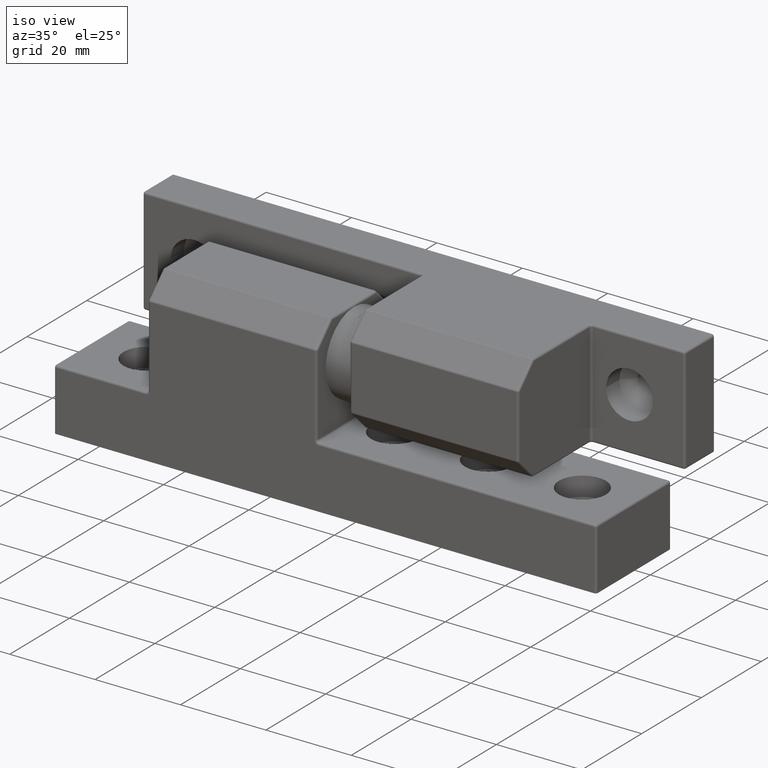
[diagram: clean part render]
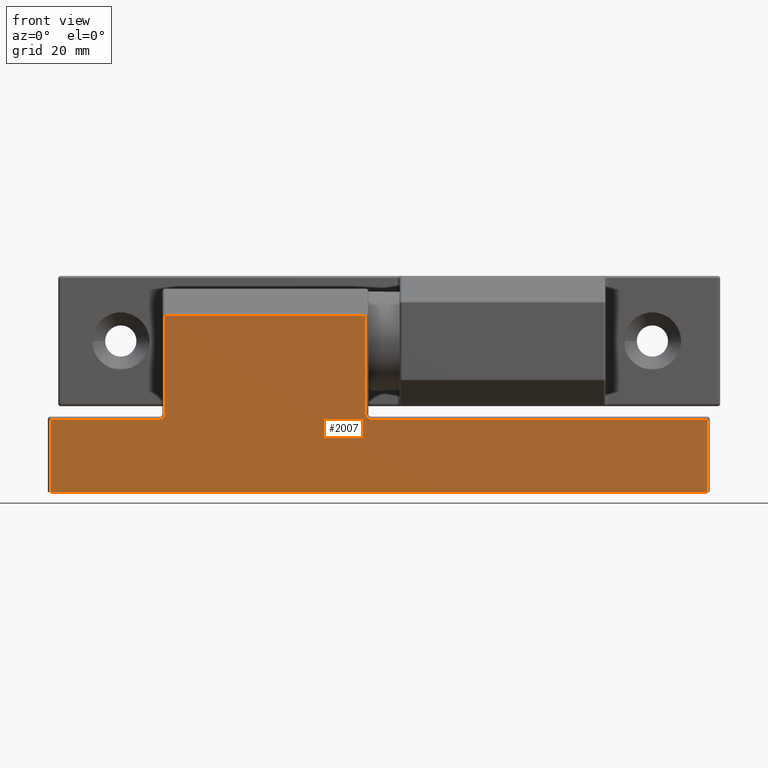
[diagram: tour spotlight — one face highlighted and labeled with its STEP entity id]
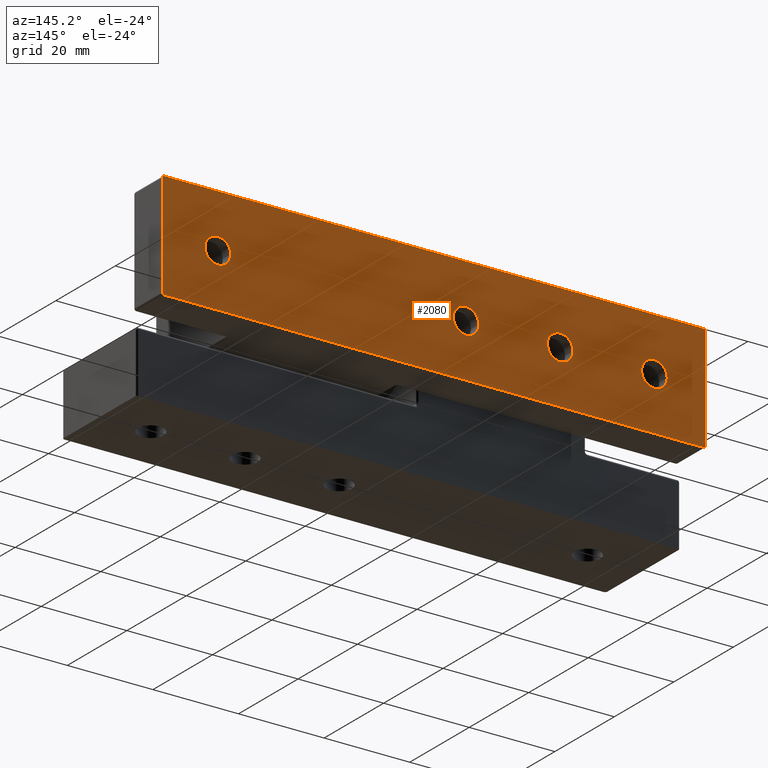
[diagram: tour spotlight — one face highlighted and labeled with its STEP entity id]
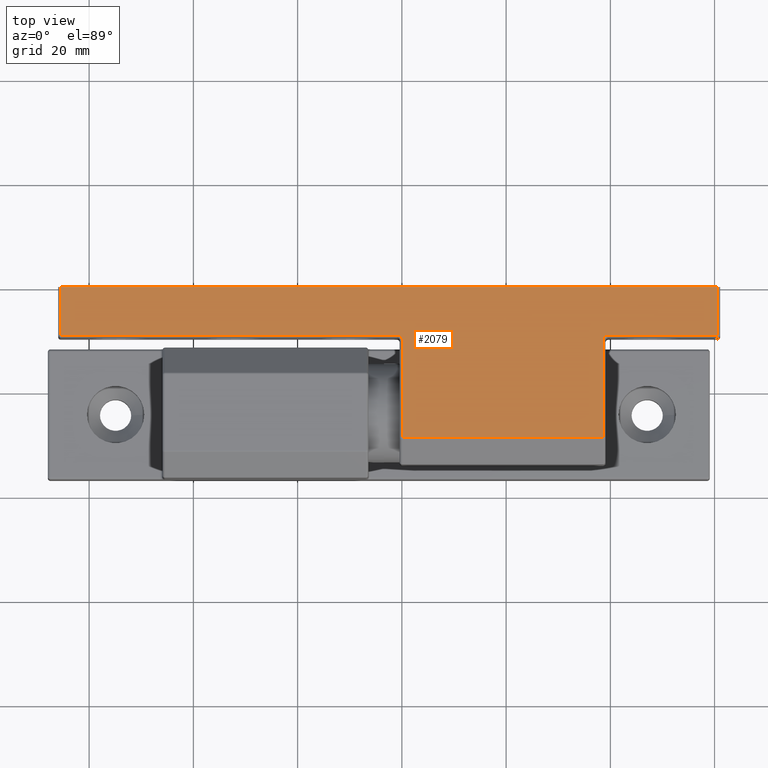
[diagram: tour spotlight — one face highlighted and labeled with its STEP entity id]
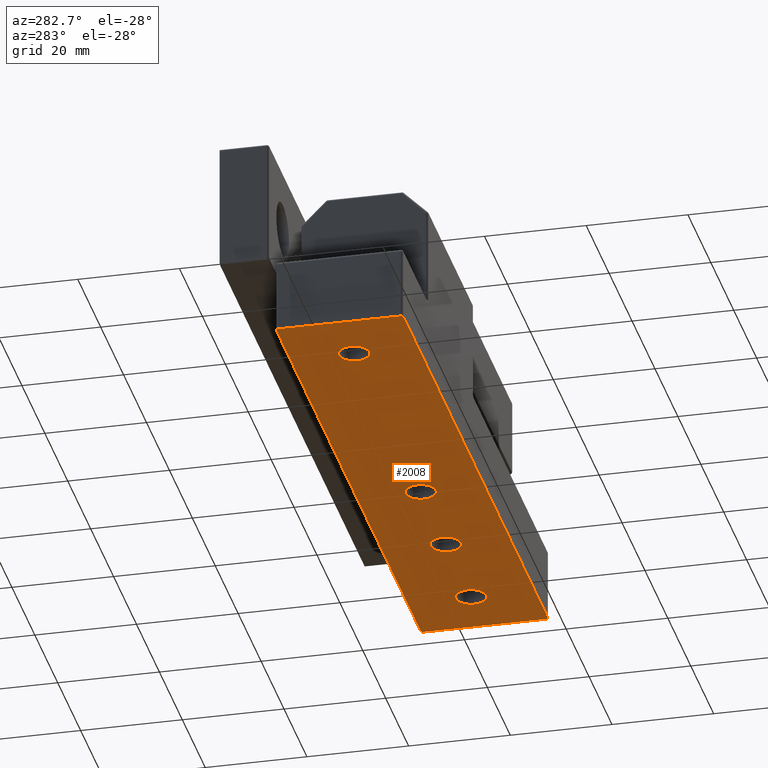
[diagram: tour spotlight — one face highlighted and labeled with its STEP entity id]
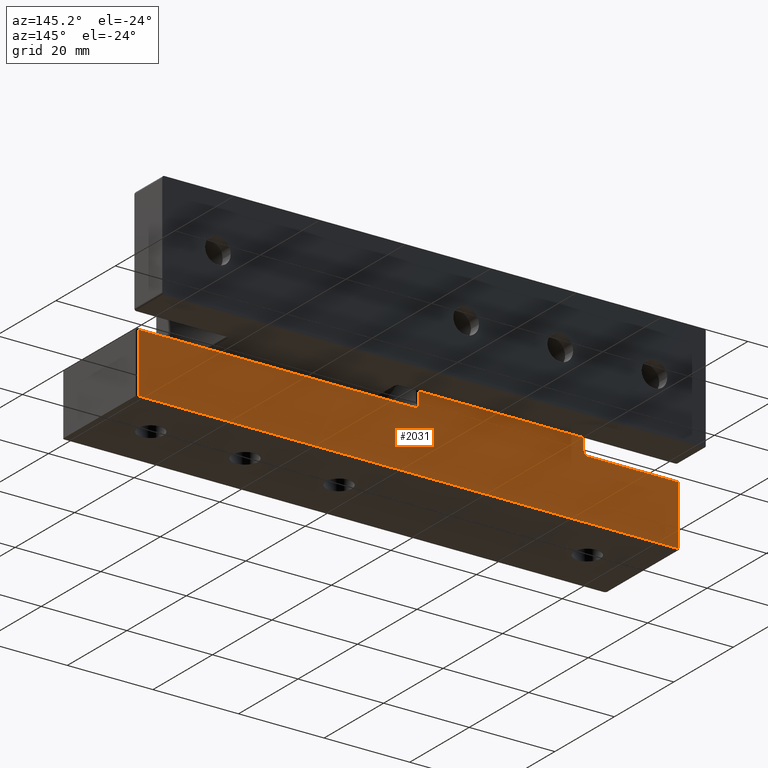
[diagram: tour spotlight — one face highlighted and labeled with its STEP entity id]
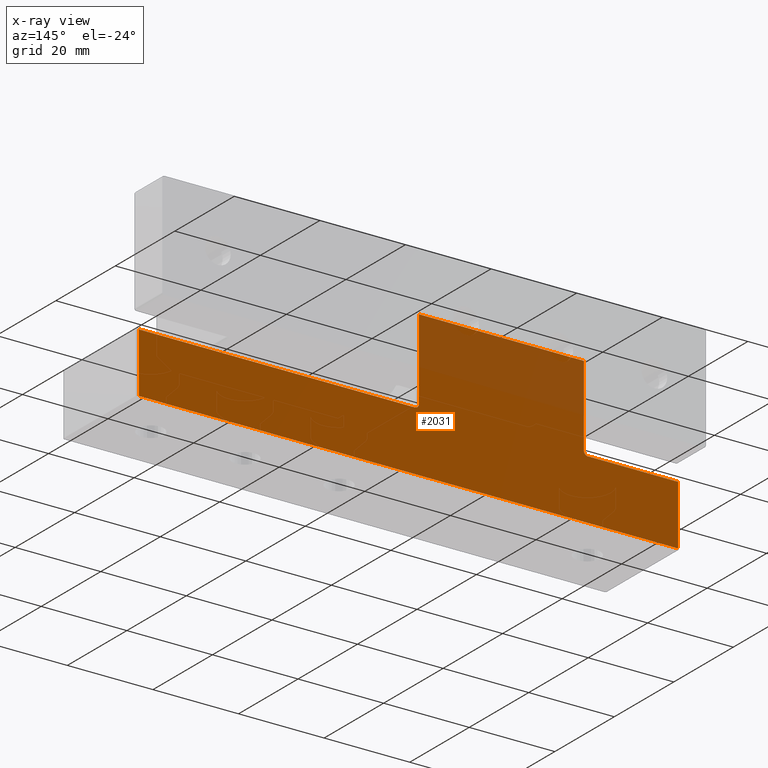
[diagram: x-ray of the same camera — body ghosted, this tour face saturated]
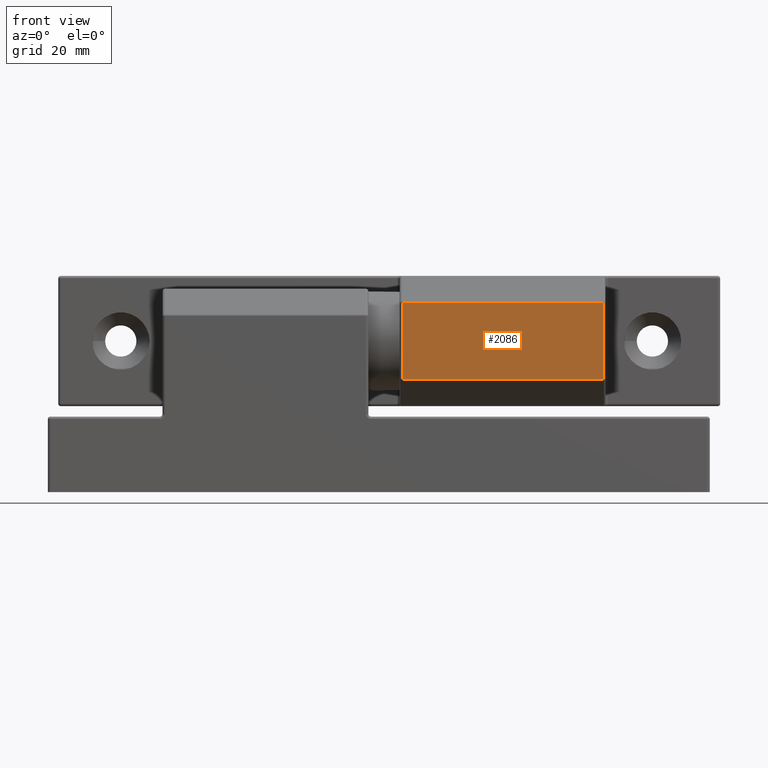
[diagram: tour spotlight — one face highlighted and labeled with its STEP entity id]
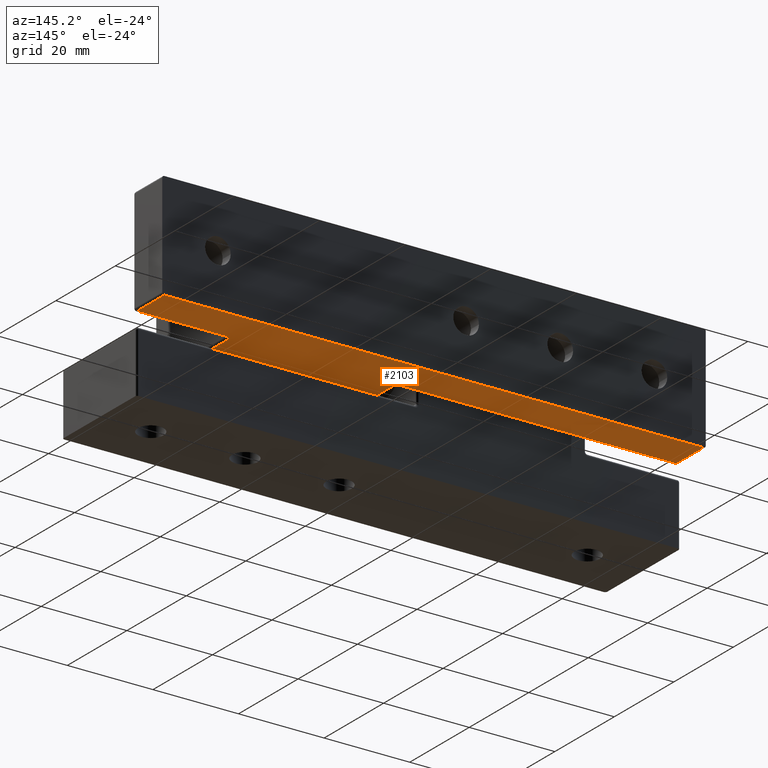
[diagram: tour spotlight — one face highlighted and labeled with its STEP entity id]
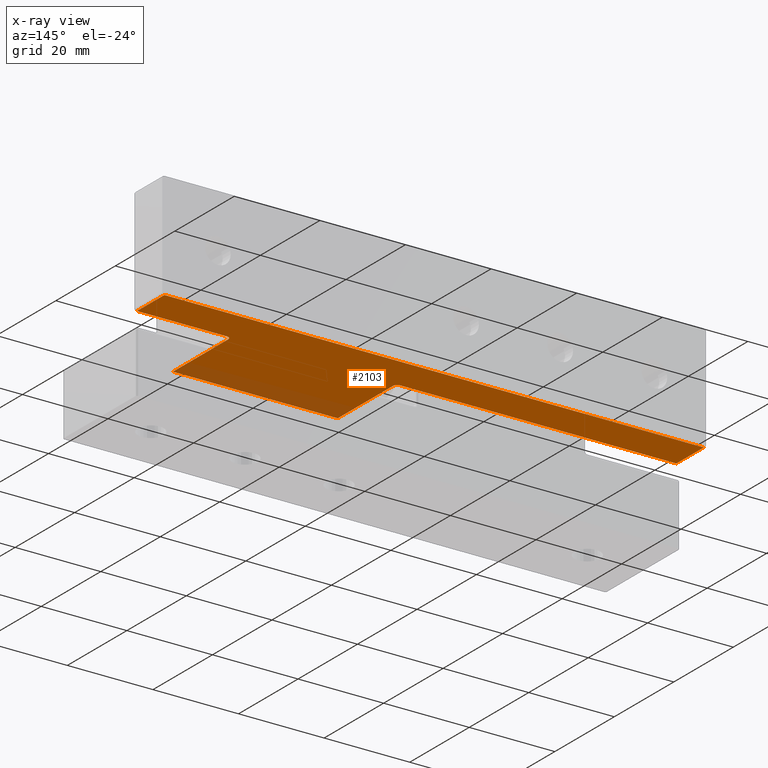
[diagram: x-ray of the same camera — body ghosted, this tour face saturated]
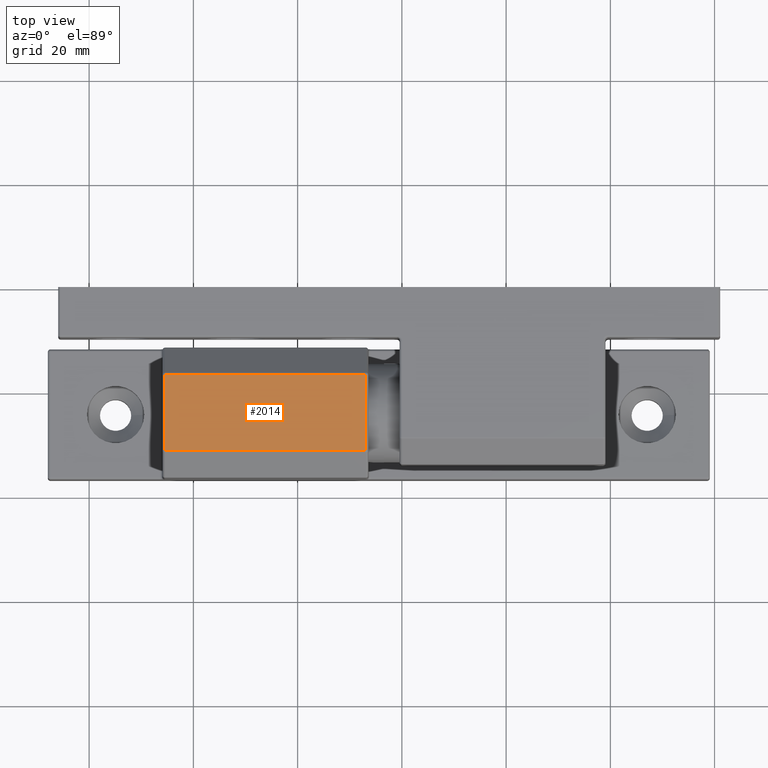
[diagram: tour spotlight — one face highlighted and labeled with its STEP entity id]
A machine part: a face-by-face anatomy tour. The part has 149 B-rep faces; the first image is the clean iso view, then the 8 largest visible faces are spotlighted one at a time (largest first), each with its STEP entity span.

Face 1 — front view, entity #2007. In plain terms, the highlighted planar face has unit normal (-0, -1, 0).
Definition (entity closure, byte-faithful):
#105=PLANE('',#2218);
#149=LINE('',#3238,#261);
#156=LINE('',#3268,#268);
#161=LINE('',#3307,#273);
#165=LINE('',#3322,#277);
#167=LINE('',#3346,#279);
#169=LINE('',#3349,#281);
#173=LINE('',#3355,#285);
#197=LINE('',#3392,#309);
#261=VECTOR('',#2501,14.);
#268=VECTOR('',#2536,14.);
#273=VECTOR('',#2581,64.5);
#277=VECTOR('',#2599,21.);
#279=VECTOR('',#2627,18.7928932188135);
#281=VECTOR('',#2631,38.5);
#285=VECTOR('',#2639,18.7928932188134);
#309=VECTOR('',#2689,126.);
#486=FACE_OUTER_BOUND('',#635,.T.);
#635=EDGE_LOOP('',(#1556,#1557,#1558,#1559,#1560,#1561,#1562,#1563,#1564,
#1565));
#835=CIRCLE('',#2178,0.999999999999999);
#841=CIRCLE('',#2187,1.);
#975=VERTEX_POINT('',#3227);
#978=VERTEX_POINT('',#3234);
#986=VERTEX_POINT('',#3261);
#988=VERTEX_POINT('',#3266);
#999=VERTEX_POINT('',#3297);
#1000=VERTEX_POINT('',#3298);
#1005=VERTEX_POINT('',#3315);
#1006=VERTEX_POINT('',#3317);
#1012=VERTEX_POINT('',#3334);
#1015=VERTEX_POINT('',#3341);
#1150=EDGE_CURVE('',#975,#978,#149,.T.);
#1165=EDGE_CURVE('',#988,#986,#156,.T.);
#1179=EDGE_CURVE('',#999,#1000,#835,.T.);
#1184=EDGE_CURVE('',#1000,#975,#161,.T.);
#1189=EDGE_CURVE('',#1005,#1006,#841,.T.);
#1192=EDGE_CURVE('',#986,#1005,#165,.T.);
#1203=EDGE_CURVE('',#1006,#1015,#167,.T.);
#1205=EDGE_CURVE('',#1015,#1012,#169,.T.);
#1209=EDGE_CURVE('',#1012,#999,#173,.T.);
#1233=EDGE_CURVE('',#988,#978,#197,.T.);
#1556=ORIENTED_EDGE('',*,*,#1150,.F.);
#1557=ORIENTED_EDGE('',*,*,#1184,.F.);
#1558=ORIENTED_EDGE('',*,*,#1179,.F.);
#1559=ORIENTED_EDGE('',*,*,#1209,.F.);
#1560=ORIENTED_EDGE('',*,*,#1205,.F.);
#1561=ORIENTED_EDGE('',*,*,#1203,.F.);
#1562=ORIENTED_EDGE('',*,*,#1189,.F.);
#1563=ORIENTED_EDGE('',*,*,#1192,.F.);
#1564=ORIENTED_EDGE('',*,*,#1165,.F.);
#1565=ORIENTED_EDGE('',*,*,#1233,.T.);
#2007=ADVANCED_FACE('',(#486),#105,.T.);
#2178=AXIS2_PLACEMENT_3D('',#3299,#2570,#2571);
#2187=AXIS2_PLACEMENT_3D('',#3318,#2592,#2593);
#2218=AXIS2_PLACEMENT_3D('',#3391,#2687,#2688);
#2501=DIRECTION('',(0.,0.,-1.));
#2536=DIRECTION('',(0.,0.,1.));
#2570=DIRECTION('center_axis',(0.,-1.,0.));
#2571=DIRECTION('ref_axis',(-0.707106781186545,0.,-0.70710678118655));
#2581=DIRECTION('',(1.,0.,0.));
#2592=DIRECTION('center_axis',(0.,-1.,0.));
#2593=DIRECTION('ref_axis',(0.707106781186544,0.,-0.707106781186551));
#2599=DIRECTION('',(1.,0.,0.));
#2627=DIRECTION('',(0.,0.,1.));
#2631=DIRECTION('',(1.,0.,-3.55271367880049E-16));
#2639=DIRECTION('',(0.,0.,-1.));
#2687=DIRECTION('center_axis',(0.,-1.,0.));
#2688=DIRECTION('ref_axis',(1.,0.,0.));
#2689=DIRECTION('',(1.,0.,0.));
#3227=CARTESIAN_POINT('',(63.,-12.5,14.));
#3234=CARTESIAN_POINT('',(63.,-12.5,0.));
#3238=CARTESIAN_POINT('',(63.,-12.5,0.));
#3261=CARTESIAN_POINT('',(-63.,-12.5,14.));
#3266=CARTESIAN_POINT('',(-63.,-12.5,0.));
#3268=CARTESIAN_POINT('',(-63.,-12.5,0.));
#3297=CARTESIAN_POINT('',(-2.49999999999998,-12.5,15.));
#3298=CARTESIAN_POINT('',(-1.49999999999998,-12.5,14.));
#3299=CARTESIAN_POINT('Origin',(-1.49999999999998,-12.5,15.));
#3307=CARTESIAN_POINT('',(-31.75,-12.5,14.));
#3315=CARTESIAN_POINT('',(-42.,-12.5,14.));
#3317=CARTESIAN_POINT('',(-41.,-12.5,15.));
#3318=CARTESIAN_POINT('Origin',(-42.,-12.5,15.));
#3322=CARTESIAN_POINT('',(-31.75,-12.5,14.));
#3334=CARTESIAN_POINT('',(-2.49999999999998,-12.5,33.7928932188134));
#3341=CARTESIAN_POINT('',(-41.,-12.5,33.7928932188135));
#3346=CARTESIAN_POINT('',(-41.,-12.5,12.9341996193842));
#3349=CARTESIAN_POINT('',(-52.5,-12.5,33.7928932188135));
#3355=CARTESIAN_POINT('',(-2.49999999999998,-12.5,12.9341996193842));
#3391=CARTESIAN_POINT('Origin',(-63.5,-12.5,0.));
#3392=CARTESIAN_POINT('',(-63.5,-12.5,0.));

Face 2 — auxiliary view, entity #2080. In plain terms, the highlighted planar face has unit normal (-0, -1, 0).
Definition (entity closure, byte-faithful):
#75=FACE_BOUND('',#735,.T.);
#76=FACE_BOUND('',#736,.T.);
#77=FACE_BOUND('',#737,.T.);
#78=FACE_BOUND('',#738,.T.);
#121=PLANE('',#2370);
#252=LINE('',#3679,#364);
#253=LINE('',#3681,#365);
#254=LINE('',#3683,#366);
#255=LINE('',#3684,#367);
#364=VECTOR('',#3044,24.);
#365=VECTOR('',#3047,126.);
#366=VECTOR('',#3050,24.);
#367=VECTOR('',#3051,126.);
#559=FACE_OUTER_BOUND('',#734,.T.);
#734=EDGE_LOOP('',(#1834,#1835,#1836,#1837,#1838,#1839,#1840,#1841));
#735=EDGE_LOOP('',(#1842));
#736=EDGE_LOOP('',(#1843));
#737=EDGE_LOOP('',(#1844));
#738=EDGE_LOOP('',(#1845));
#877=CIRCLE('',#2275,0.5);
#884=CIRCLE('',#2285,0.5);
#894=CIRCLE('',#2299,0.5);
#902=CIRCLE('',#2313,0.5);
#930=CIRCLE('',#2371,3.);
#931=CIRCLE('',#2372,3.);
#932=CIRCLE('',#2373,3.);
#933=CIRCLE('',#2374,3.);
#1041=VERTEX_POINT('',#3476);
#1042=VERTEX_POINT('',#3477);
#1049=VERTEX_POINT('',#3496);
#1050=VERTEX_POINT('',#3497);
#1060=VERTEX_POINT('',#3523);
#1061=VERTEX_POINT('',#3524);
#1069=VERTEX_POINT('',#3554);
#1070=VERTEX_POINT('',#3555);
#1098=VERTEX_POINT('',#3685);
#1099=VERTEX_POINT('',#3687);
#1100=VERTEX_POINT('',#3689);
#1101=VERTEX_POINT('',#3691);
#1261=EDGE_CURVE('',#1041,#1042,#877,.T.);
#1270=EDGE_CURVE('',#1049,#1050,#884,.T.);
#1282=EDGE_CURVE('',#1060,#1061,#894,.T.);
#1298=EDGE_CURVE('',#1069,#1070,#902,.T.);
#1366=EDGE_CURVE('',#1061,#1041,#252,.T.);
#1367=EDGE_CURVE('',#1070,#1060,#253,.T.);
#1368=EDGE_CURVE('',#1050,#1069,#254,.T.);
#1369=EDGE_CURVE('',#1042,#1049,#255,.T.);
#1370=EDGE_CURVE('',#1098,#1098,#930,.T.);
#1371=EDGE_CURVE('',#1099,#1099,#931,.T.);
#1372=EDGE_CURVE('',#1100,#1100,#932,.T.);
#1373=EDGE_CURVE('',#1101,#1101,#933,.T.);
#1834=ORIENTED_EDGE('',*,*,#1261,.F.);
#1835=ORIENTED_EDGE('',*,*,#1366,.F.);
#1836=ORIENTED_EDGE('',*,*,#1282,.F.);
#1837=ORIENTED_EDGE('',*,*,#1367,.F.);
#1838=ORIENTED_EDGE('',*,*,#1298,.F.);
#1839=ORIENTED_EDGE('',*,*,#1368,.F.);
#1840=ORIENTED_EDGE('',*,*,#1270,.F.);
#1841=ORIENTED_EDGE('',*,*,#1369,.F.);
#1842=ORIENTED_EDGE('',*,*,#1370,.T.);
#1843=ORIENTED_EDGE('',*,*,#1371,.T.);
#1844=ORIENTED_EDGE('',*,*,#1372,.T.);
#1845=ORIENTED_EDGE('',*,*,#1373,.T.);
#2080=ADVANCED_FACE('',(#559,#75,#76,#77,#78),#121,.F.);
#2275=AXIS2_PLACEMENT_3D('',#3478,#2804,#2805);
#2285=AXIS2_PLACEMENT_3D('',#3498,#2826,#2827);
#2299=AXIS2_PLACEMENT_3D('',#3525,#2856,#2857);
#2313=AXIS2_PLACEMENT_3D('',#3556,#2892,#2893);
#2370=AXIS2_PLACEMENT_3D('',#3682,#3048,#3049);
#2371=AXIS2_PLACEMENT_3D('',#3686,#3052,#3053);
#2372=AXIS2_PLACEMENT_3D('',#3688,#3054,#3055);
#2373=AXIS2_PLACEMENT_3D('',#3690,#3056,#3057);
#2374=AXIS2_PLACEMENT_3D('',#3692,#3058,#3059);
#2804=DIRECTION('center_axis',(0.,0.,1.));
#2805=DIRECTION('ref_axis',(0.707106781186551,0.707106781186544,0.));
#2826=DIRECTION('center_axis',(0.,0.,1.));
#2827=DIRECTION('ref_axis',(-0.707106781186554,0.707106781186541,0.));
#2856=DIRECTION('center_axis',(0.,0.,1.));
#2857=DIRECTION('ref_axis',(0.707106781186554,-0.707106781186541,0.));
#2892=DIRECTION('center_axis',(0.,0.,1.));
#2893=DIRECTION('ref_axis',(-0.707106781186538,-0.707106781186557,0.));
#3044=DIRECTION('',(-7.105427357601E-16,1.,0.));
#3047=DIRECTION('',(1.,0.,0.));
#3048=DIRECTION('center_axis',(0.,0.,1.));
#3049=DIRECTION('ref_axis',(1.,0.,0.));
#3050=DIRECTION('',(3.5527136788005E-16,-1.,0.));
#3051=DIRECTION('',(-1.,-1.3987061727561E-16,0.));
#3052=DIRECTION('center_axis',(0.,0.,1.));
#3053=DIRECTION('ref_axis',(1.,0.,0.));
#3054=DIRECTION('center_axis',(0.,0.,1.));
#3055=DIRECTION('ref_axis',(1.,0.,0.));
#3056=DIRECTION('center_axis',(0.,0.,1.));
#3057=DIRECTION('ref_axis',(1.,0.,0.));
#3058=DIRECTION('center_axis',(0.,0.,1.));
#3059=DIRECTION('ref_axis',(1.,0.,0.));
#3476=CARTESIAN_POINT('',(63.5,12.,0.));
#3477=CARTESIAN_POINT('',(63.,12.5,0.));
#3478=CARTESIAN_POINT('Origin',(63.,12.,0.));
#3496=CARTESIAN_POINT('',(-63.,12.5,0.));
#3497=CARTESIAN_POINT('',(-63.5,12.,0.));
#3498=CARTESIAN_POINT('Origin',(-63.,12.,0.));
#3523=CARTESIAN_POINT('',(63.,-12.5,0.));
#3524=CARTESIAN_POINT('',(63.5,-12.,0.));
#3525=CARTESIAN_POINT('Origin',(63.,-12.,0.));
#3554=CARTESIAN_POINT('',(-63.5,-12.,0.));
#3555=CARTESIAN_POINT('',(-63.,-12.5,0.));
#3556=CARTESIAN_POINT('Origin',(-63.,-12.,0.));
#3679=CARTESIAN_POINT('',(63.5,-12.5,0.));
#3681=CARTESIAN_POINT('',(-63.5,-12.5,0.));
#3682=CARTESIAN_POINT('Origin',(2.89242314310238E-14,-1.24169680385708E-15,
0.));
#3683=CARTESIAN_POINT('',(-63.5,12.5,0.));
#3684=CARTESIAN_POINT('',(63.5,12.5,0.));
#3685=CARTESIAN_POINT('',(26.5,-3.67394039744206E-16,0.));
#3686=CARTESIAN_POINT('Origin',(29.5,0.,0.));
#3687=CARTESIAN_POINT('',(4.50000000000002,-3.67394039744206E-16,0.));
#3688=CARTESIAN_POINT('Origin',(7.50000000000002,0.,0.));
#3689=CARTESIAN_POINT('',(-53.5,-3.67394039744206E-16,0.));
#3690=CARTESIAN_POINT('Origin',(-50.5,0.,0.));
#3691=CARTESIAN_POINT('',(48.5,-3.67394039744206E-16,0.));
#3692=CARTESIAN_POINT('Origin',(51.5,0.,0.));

Face 3 — top view, entity #2079. In plain terms, the highlighted planar face has unit normal (0, 0, 1).
Definition (entity closure, byte-faithful):
#120=PLANE('',#2369);
#205=LINE('',#3527,#317);
#212=LINE('',#3557,#324);
#217=LINE('',#3596,#329);
#221=LINE('',#3611,#333);
#223=LINE('',#3635,#335);
#225=LINE('',#3638,#337);
#229=LINE('',#3644,#341);
#253=LINE('',#3681,#365);
#317=VECTOR('',#2859,9.2);
#324=VECTOR('',#2894,9.2);
#329=VECTOR('',#2939,64.5);
#333=VECTOR('',#2957,21.);
#335=VECTOR('',#2985,18.5928932188135);
#337=VECTOR('',#2989,38.5);
#341=VECTOR('',#2997,18.5928932188135);
#365=VECTOR('',#3047,126.);
#558=FACE_OUTER_BOUND('',#733,.T.);
#733=EDGE_LOOP('',(#1824,#1825,#1826,#1827,#1828,#1829,#1830,#1831,#1832,
#1833));
#913=CIRCLE('',#2329,0.999999999999999);
#919=CIRCLE('',#2338,1.);
#1057=VERTEX_POINT('',#3516);
#1060=VERTEX_POINT('',#3523);
#1068=VERTEX_POINT('',#3550);
#1070=VERTEX_POINT('',#3555);
#1081=VERTEX_POINT('',#3586);
#1082=VERTEX_POINT('',#3587);
#1087=VERTEX_POINT('',#3604);
#1088=VERTEX_POINT('',#3606);
#1094=VERTEX_POINT('',#3623);
#1097=VERTEX_POINT('',#3630);
#1284=EDGE_CURVE('',#1057,#1060,#205,.T.);
#1299=EDGE_CURVE('',#1070,#1068,#212,.T.);
#1313=EDGE_CURVE('',#1081,#1082,#913,.T.);
#1318=EDGE_CURVE('',#1082,#1057,#217,.T.);
#1323=EDGE_CURVE('',#1087,#1088,#919,.T.);
#1326=EDGE_CURVE('',#1068,#1087,#221,.T.);
#1337=EDGE_CURVE('',#1088,#1097,#223,.T.);
#1339=EDGE_CURVE('',#1097,#1094,#225,.T.);
#1343=EDGE_CURVE('',#1094,#1081,#229,.T.);
#1367=EDGE_CURVE('',#1070,#1060,#253,.T.);
#1824=ORIENTED_EDGE('',*,*,#1284,.F.);
#1825=ORIENTED_EDGE('',*,*,#1318,.F.);
#1826=ORIENTED_EDGE('',*,*,#1313,.F.);
#1827=ORIENTED_EDGE('',*,*,#1343,.F.);
#1828=ORIENTED_EDGE('',*,*,#1339,.F.);
#1829=ORIENTED_EDGE('',*,*,#1337,.F.);
#1830=ORIENTED_EDGE('',*,*,#1323,.F.);
#1831=ORIENTED_EDGE('',*,*,#1326,.F.);
#1832=ORIENTED_EDGE('',*,*,#1299,.F.);
#1833=ORIENTED_EDGE('',*,*,#1367,.T.);
#2079=ADVANCED_FACE('',(#558),#120,.T.);
#2329=AXIS2_PLACEMENT_3D('',#3588,#2928,#2929);
#2338=AXIS2_PLACEMENT_3D('',#3607,#2950,#2951);
#2369=AXIS2_PLACEMENT_3D('',#3680,#3045,#3046);
#2859=DIRECTION('',(0.,0.,-1.));
#2894=DIRECTION('',(0.,0.,1.));
#2928=DIRECTION('center_axis',(0.,-1.,0.));
#2929=DIRECTION('ref_axis',(-0.707106781186547,0.,-0.707106781186548));
#2939=DIRECTION('',(1.,0.,0.));
#2950=DIRECTION('center_axis',(0.,-1.,0.));
#2951=DIRECTION('ref_axis',(0.707106781186546,0.,-0.707106781186549));
#2957=DIRECTION('',(1.,0.,0.));
#2985=DIRECTION('',(0.,0.,1.));
#2989=DIRECTION('',(1.,0.,-3.5527136788005E-16));
#2997=DIRECTION('',(0.,0.,-1.));
#3045=DIRECTION('center_axis',(0.,-1.,0.));
#3046=DIRECTION('ref_axis',(1.,0.,0.));
#3047=DIRECTION('',(1.,0.,0.));
#3516=CARTESIAN_POINT('',(63.,-12.5,9.2));
#3523=CARTESIAN_POINT('',(63.,-12.5,0.));
#3527=CARTESIAN_POINT('',(63.,-12.5,0.));
#3550=CARTESIAN_POINT('',(-63.,-12.5,9.2));
#3555=CARTESIAN_POINT('',(-63.,-12.5,0.));
#3557=CARTESIAN_POINT('',(-63.,-12.5,0.));
#3586=CARTESIAN_POINT('',(-2.49999999999998,-12.5,10.2));
#3587=CARTESIAN_POINT('',(-1.49999999999998,-12.5,9.2));
#3588=CARTESIAN_POINT('Origin',(-1.49999999999998,-12.5,10.2));
#3596=CARTESIAN_POINT('',(-31.75,-12.5,9.2));
#3604=CARTESIAN_POINT('',(-42.,-12.5,9.2));
#3606=CARTESIAN_POINT('',(-41.,-12.5,10.2));
#3607=CARTESIAN_POINT('Origin',(-42.,-12.5,10.2));
#3611=CARTESIAN_POINT('',(-31.75,-12.5,9.2));
#3623=CARTESIAN_POINT('',(-2.49999999999998,-12.5,28.7928932188135));
#3630=CARTESIAN_POINT('',(-41.,-12.5,28.7928932188135));
#3635=CARTESIAN_POINT('',(-41.,-12.5,10.4854565784329));
#3638=CARTESIAN_POINT('',(-52.5,-12.5,28.7928932188135));
#3644=CARTESIAN_POINT('',(-2.49999999999998,-12.5,10.4854565784329));
#3680=CARTESIAN_POINT('Origin',(-63.5,-12.5,0.));
#3681=CARTESIAN_POINT('',(-63.5,-12.5,0.));

Face 4 — auxiliary view, entity #2008. In plain terms, the highlighted planar face has unit normal (0, 0, 1).
Definition (entity closure, byte-faithful):
#49=FACE_BOUND('',#637,.T.);
#50=FACE_BOUND('',#638,.T.);
#51=FACE_BOUND('',#639,.T.);
#52=FACE_BOUND('',#640,.T.);
#106=PLANE('',#2219);
#196=LINE('',#3390,#308);
#197=LINE('',#3392,#309);
#198=LINE('',#3394,#310);
#199=LINE('',#3395,#311);
#308=VECTOR('',#2686,24.);
#309=VECTOR('',#2689,126.);
#310=VECTOR('',#2692,24.);
#311=VECTOR('',#2693,126.);
#487=FACE_OUTER_BOUND('',#636,.T.);
#636=EDGE_LOOP('',(#1566,#1567,#1568,#1569,#1570,#1571,#1572,#1573));
#637=EDGE_LOOP('',(#1574));
#638=EDGE_LOOP('',(#1575));
#639=EDGE_LOOP('',(#1576));
#640=EDGE_LOOP('',(#1577));
#799=CIRCLE('',#2124,0.5);
#806=CIRCLE('',#2134,0.5);
#816=CIRCLE('',#2148,0.5);
#824=CIRCLE('',#2162,0.5);
#852=CIRCLE('',#2220,3.);
#853=CIRCLE('',#2221,3.);
#854=CIRCLE('',#2222,3.);
#855=CIRCLE('',#2223,3.);
#959=VERTEX_POINT('',#3187);
#960=VERTEX_POINT('',#3188);
#967=VERTEX_POINT('',#3207);
#968=VERTEX_POINT('',#3208);
#978=VERTEX_POINT('',#3234);
#979=VERTEX_POINT('',#3235);
#987=VERTEX_POINT('',#3265);
#988=VERTEX_POINT('',#3266);
#1016=VERTEX_POINT('',#3396);
#1017=VERTEX_POINT('',#3398);
#1018=VERTEX_POINT('',#3400);
#1019=VERTEX_POINT('',#3402);
#1127=EDGE_CURVE('',#959,#960,#799,.T.);
#1136=EDGE_CURVE('',#967,#968,#806,.T.);
#1148=EDGE_CURVE('',#978,#979,#816,.T.);
#1164=EDGE_CURVE('',#987,#988,#824,.T.);
#1232=EDGE_CURVE('',#979,#959,#196,.T.);
#1233=EDGE_CURVE('',#988,#978,#197,.T.);
#1234=EDGE_CURVE('',#968,#987,#198,.T.);
#1235=EDGE_CURVE('',#960,#967,#199,.T.);
#1236=EDGE_CURVE('',#1016,#1016,#852,.T.);
#1237=EDGE_CURVE('',#1017,#1017,#853,.T.);
#1238=EDGE_CURVE('',#1018,#1018,#854,.T.);
#1239=EDGE_CURVE('',#1019,#1019,#855,.T.);
#1566=ORIENTED_EDGE('',*,*,#1127,.F.);
#1567=ORIENTED_EDGE('',*,*,#1232,.F.);
#1568=ORIENTED_EDGE('',*,*,#1148,.F.);
#1569=ORIENTED_EDGE('',*,*,#1233,.F.);
#1570=ORIENTED_EDGE('',*,*,#1164,.F.);
#1571=ORIENTED_EDGE('',*,*,#1234,.F.);
#1572=ORIENTED_EDGE('',*,*,#1136,.F.);
#1573=ORIENTED_EDGE('',*,*,#1235,.F.);
#1574=ORIENTED_EDGE('',*,*,#1236,.T.);
#1575=ORIENTED_EDGE('',*,*,#1237,.T.);
#1576=ORIENTED_EDGE('',*,*,#1238,.T.);
#1577=ORIENTED_EDGE('',*,*,#1239,.T.);
#2008=ADVANCED_FACE('',(#487,#49,#50,#51,#52),#106,.F.);
#2124=AXIS2_PLACEMENT_3D('',#3189,#2446,#2447);
#2134=AXIS2_PLACEMENT_3D('',#3209,#2468,#2469);
#2148=AXIS2_PLACEMENT_3D('',#3236,#2498,#2499);
#2162=AXIS2_PLACEMENT_3D('',#3267,#2534,#2535);
#2219=AXIS2_PLACEMENT_3D('',#3393,#2690,#2691);
#2220=AXIS2_PLACEMENT_3D('',#3397,#2694,#2695);
#2221=AXIS2_PLACEMENT_3D('',#3399,#2696,#2697);
#2222=AXIS2_PLACEMENT_3D('',#3401,#2698,#2699);
#2223=AXIS2_PLACEMENT_3D('',#3403,#2700,#2701);
#2446=DIRECTION('center_axis',(0.,0.,1.));
#2447=DIRECTION('ref_axis',(0.707106781186551,0.707106781186544,0.));
#2468=DIRECTION('center_axis',(0.,0.,1.));
#2469=DIRECTION('ref_axis',(-0.707106781186554,0.707106781186541,0.));
#2498=DIRECTION('center_axis',(0.,0.,1.));
#2499=DIRECTION('ref_axis',(0.707106781186554,-0.707106781186541,0.));
#2534=DIRECTION('center_axis',(0.,0.,1.));
#2535=DIRECTION('ref_axis',(-0.707106781186538,-0.707106781186557,0.));
#2686=DIRECTION('',(-7.105427357601E-16,1.,0.));
#2689=DIRECTION('',(1.,0.,0.));
#2690=DIRECTION('center_axis',(0.,0.,1.));
#2691=DIRECTION('ref_axis',(1.,0.,0.));
#2692=DIRECTION('',(3.5527136788005E-16,-1.,0.));
#2693=DIRECTION('',(-1.,-1.3987061727561E-16,0.));
#2694=DIRECTION('center_axis',(0.,0.,1.));
#2695=DIRECTION('ref_axis',(1.,0.,0.));
#2696=DIRECTION('center_axis',(0.,0.,1.));
#2697=DIRECTION('ref_axis',(1.,0.,0.));
#2698=DIRECTION('center_axis',(0.,0.,1.));
#2699=DIRECTION('ref_axis',(1.,0.,0.));
#2700=DIRECTION('center_axis',(0.,0.,1.));
#2701=DIRECTION('ref_axis',(1.,0.,0.));
#3187=CARTESIAN_POINT('',(63.5,12.,0.));
#3188=CARTESIAN_POINT('',(63.,12.5,0.));
#3189=CARTESIAN_POINT('Origin',(63.,12.,0.));
#3207=CARTESIAN_POINT('',(-63.,12.5,0.));
#3208=CARTESIAN_POINT('',(-63.5,12.,0.));
#3209=CARTESIAN_POINT('Origin',(-63.,12.,0.));
#3234=CARTESIAN_POINT('',(63.,-12.5,0.));
#3235=CARTESIAN_POINT('',(63.5,-12.,0.));
#3236=CARTESIAN_POINT('Origin',(63.,-12.,0.));
#3265=CARTESIAN_POINT('',(-63.5,-12.,0.));
#3266=CARTESIAN_POINT('',(-63.,-12.5,0.));
#3267=CARTESIAN_POINT('Origin',(-63.,-12.,0.));
#3390=CARTESIAN_POINT('',(63.5,-12.5,0.));
#3392=CARTESIAN_POINT('',(-63.5,-12.5,0.));
#3393=CARTESIAN_POINT('Origin',(2.89242314310238E-14,-1.24169680385708E-15,
0.));
#3394=CARTESIAN_POINT('',(-63.5,12.5,0.));
#3395=CARTESIAN_POINT('',(63.5,12.5,0.));
#3396=CARTESIAN_POINT('',(26.5,-3.67394039744206E-16,0.));
#3397=CARTESIAN_POINT('Origin',(29.5,0.,0.));
#3398=CARTESIAN_POINT('',(4.50000000000002,-3.67394039744206E-16,0.));
#3399=CARTESIAN_POINT('Origin',(7.50000000000002,0.,0.));
#3400=CARTESIAN_POINT('',(-53.5,-3.67394039744206E-16,0.));
#3401=CARTESIAN_POINT('Origin',(-50.5,0.,0.));
#3402=CARTESIAN_POINT('',(48.5,-3.67394039744206E-16,0.));
#3403=CARTESIAN_POINT('Origin',(51.5,0.,0.));

Face 5 — auxiliary view, entity #2031. An x-ray twin of the same camera follows (body ghosted, this face saturated) — the face is partly hidden behind the body. In plain terms, the highlighted planar face has unit normal (0, 1, -0).
Definition (entity closure, byte-faithful):
#116=PLANE('',#2260);
#144=LINE('',#3190,#256);
#147=LINE('',#3211,#259);
#153=LINE('',#3253,#265);
#155=LINE('',#3256,#267);
#159=LINE('',#3281,#271);
#189=LINE('',#3379,#301);
#194=LINE('',#3387,#306);
#199=LINE('',#3395,#311);
#256=VECTOR('',#2448,14.);
#259=VECTOR('',#2471,14.);
#265=VECTOR('',#2519,64.5);
#267=VECTOR('',#2523,18.7928932188135);
#271=VECTOR('',#2551,21.);
#301=VECTOR('',#2671,18.7928932188135);
#306=VECTOR('',#2682,38.5);
#311=VECTOR('',#2693,126.);
#510=FACE_OUTER_BOUND('',#681,.T.);
#681=EDGE_LOOP('',(#1646,#1647,#1648,#1649,#1650,#1651,#1652,#1653,#1654,
#1655));
#819=CIRCLE('',#2153,1.);
#825=CIRCLE('',#2164,0.999999999999996);
#958=VERTEX_POINT('',#3183);
#960=VERTEX_POINT('',#3188);
#961=VERTEX_POINT('',#3193);
#964=VERTEX_POINT('',#3200);
#967=VERTEX_POINT('',#3207);
#970=VERTEX_POINT('',#3214);
#982=VERTEX_POINT('',#3246);
#983=VERTEX_POINT('',#3248);
#989=VERTEX_POINT('',#3271);
#990=VERTEX_POINT('',#3272);
#1128=EDGE_CURVE('',#960,#958,#144,.T.);
#1138=EDGE_CURVE('',#964,#967,#147,.T.);
#1155=EDGE_CURVE('',#982,#983,#819,.T.);
#1158=EDGE_CURVE('',#958,#982,#153,.T.);
#1160=EDGE_CURVE('',#983,#961,#155,.T.);
#1167=EDGE_CURVE('',#989,#990,#825,.T.);
#1172=EDGE_CURVE('',#990,#964,#159,.T.);
#1225=EDGE_CURVE('',#970,#989,#189,.T.);
#1230=EDGE_CURVE('',#961,#970,#194,.T.);
#1235=EDGE_CURVE('',#960,#967,#199,.T.);
#1646=ORIENTED_EDGE('',*,*,#1128,.F.);
#1647=ORIENTED_EDGE('',*,*,#1235,.T.);
#1648=ORIENTED_EDGE('',*,*,#1138,.F.);
#1649=ORIENTED_EDGE('',*,*,#1172,.F.);
#1650=ORIENTED_EDGE('',*,*,#1167,.F.);
#1651=ORIENTED_EDGE('',*,*,#1225,.F.);
#1652=ORIENTED_EDGE('',*,*,#1230,.F.);
#1653=ORIENTED_EDGE('',*,*,#1160,.F.);
#1654=ORIENTED_EDGE('',*,*,#1155,.F.);
#1655=ORIENTED_EDGE('',*,*,#1158,.F.);
#2031=ADVANCED_FACE('',(#510),#116,.T.);
#2153=AXIS2_PLACEMENT_3D('',#3249,#2512,#2513);
#2164=AXIS2_PLACEMENT_3D('',#3273,#2540,#2541);
#2260=AXIS2_PLACEMENT_3D('',#3454,#2774,#2775);
#2448=DIRECTION('',(0.,0.,1.));
#2471=DIRECTION('',(0.,0.,-1.));
#2512=DIRECTION('center_axis',(-1.3987061727561E-16,1.,0.));
#2513=DIRECTION('ref_axis',(-0.707106781186544,0.,-0.707106781186552));
#2519=DIRECTION('',(-1.,-1.3987061727561E-16,0.));
#2523=DIRECTION('',(0.,0.,1.));
#2540=DIRECTION('center_axis',(-1.3987061727561E-16,1.,0.));
#2541=DIRECTION('ref_axis',(0.707106781186544,0.,-0.707106781186551));
#2551=DIRECTION('',(-1.,-1.3987061727561E-16,0.));
#2671=DIRECTION('',(0.,0.,-1.));
#2682=DIRECTION('',(-1.,-1.3987061727561E-16,-2.1540075060444E-16));
#2693=DIRECTION('',(-1.,-1.3987061727561E-16,0.));
#2774=DIRECTION('center_axis',(-1.3987061727561E-16,1.,0.));
#2775=DIRECTION('ref_axis',(-1.,-1.77635683940025E-16,0.));
#3183=CARTESIAN_POINT('',(63.,12.5,14.));
#3188=CARTESIAN_POINT('',(63.,12.5,0.));
#3190=CARTESIAN_POINT('',(63.,12.5,0.));
#3193=CARTESIAN_POINT('',(-2.49999999999998,12.5,33.7928932188135));
#3200=CARTESIAN_POINT('',(-63.,12.5,14.));
#3207=CARTESIAN_POINT('',(-63.,12.5,0.));
#3211=CARTESIAN_POINT('',(-63.,12.5,0.));
#3214=CARTESIAN_POINT('',(-41.,12.5,33.7928932188135));
#3246=CARTESIAN_POINT('',(-1.49999999999999,12.5,14.));
#3248=CARTESIAN_POINT('',(-2.49999999999998,12.5,15.));
#3249=CARTESIAN_POINT('Origin',(-1.49999999999999,12.5,15.));
#3253=CARTESIAN_POINT('',(31.75,12.5,14.));
#3256=CARTESIAN_POINT('',(-2.49999999999998,12.5,12.9341996193842));
#3271=CARTESIAN_POINT('',(-41.,12.5,15.));
#3272=CARTESIAN_POINT('',(-42.,12.5,14.));
#3273=CARTESIAN_POINT('Origin',(-42.,12.5,15.));
#3281=CARTESIAN_POINT('',(31.75,12.5,14.));
#3379=CARTESIAN_POINT('',(-41.,12.5,12.9341996193842));
#3387=CARTESIAN_POINT('',(11.,12.5,33.7928932188135));
#3395=CARTESIAN_POINT('',(63.5,12.5,0.));
#3454=CARTESIAN_POINT('Origin',(63.5,12.5,0.));

Face 6 — front view, entity #2086. In plain terms, the highlighted planar face has unit normal (-0, -1, 0).
Definition (entity closure, byte-faithful):
#127=PLANE('',#2385);
#232=LINE('',#3649,#344);
#235=LINE('',#3653,#347);
#239=LINE('',#3659,#351);
#241=LINE('',#3662,#353);
#344=VECTOR('',#3004,38.5);
#347=VECTOR('',#3009,14.5857864376269);
#351=VECTOR('',#3017,14.5857864376269);
#353=VECTOR('',#3021,38.5);
#565=FACE_OUTER_BOUND('',#749,.T.);
#749=EDGE_LOOP('',(#1875,#1876,#1877,#1878));
#1056=VERTEX_POINT('',#3512);
#1077=VERTEX_POINT('',#3575);
#1078=VERTEX_POINT('',#3579);
#1090=VERTEX_POINT('',#3614);
#1346=EDGE_CURVE('',#1078,#1090,#232,.T.);
#1349=EDGE_CURVE('',#1090,#1077,#235,.T.);
#1353=EDGE_CURVE('',#1056,#1078,#239,.T.);
#1355=EDGE_CURVE('',#1077,#1056,#241,.T.);
#1875=ORIENTED_EDGE('',*,*,#1346,.F.);
#1876=ORIENTED_EDGE('',*,*,#1353,.F.);
#1877=ORIENTED_EDGE('',*,*,#1355,.F.);
#1878=ORIENTED_EDGE('',*,*,#1349,.F.);
#2086=ADVANCED_FACE('',(#565),#127,.T.);
#2385=AXIS2_PLACEMENT_3D('',#3708,#3080,#3081);
#3004=DIRECTION('',(-1.,-3.5527136788005E-16,0.));
#3009=DIRECTION('',(-3.5527136788005E-16,1.,0.));
#3017=DIRECTION('',(3.5527136788005E-16,-1.,0.));
#3021=DIRECTION('',(1.,3.5527136788005E-16,0.));
#3080=DIRECTION('center_axis',(0.,0.,1.));
#3081=DIRECTION('ref_axis',(7.105427357601E-16,-1.,0.));
#3512=CARTESIAN_POINT('',(-2.49999999999999,7.29289321881347,34.));
#3575=CARTESIAN_POINT('',(-41.,7.29289321881346,34.));
#3579=CARTESIAN_POINT('',(-2.49999999999998,-7.29289321881343,34.));
#3614=CARTESIAN_POINT('',(-41.,-7.29289321881344,34.));
#3649=CARTESIAN_POINT('',(-41.5,-7.29289321881344,34.));
#3653=CARTESIAN_POINT('',(-41.,3.75000000000001,34.));
#3659=CARTESIAN_POINT('',(-2.49999999999998,3.75000000000002,34.));
#3662=CARTESIAN_POINT('',(-41.5,7.29289321881346,34.));
#3708=CARTESIAN_POINT('Origin',(-41.5,7.50000000000001,34.));

Face 7 — auxiliary view, entity #2103. An x-ray twin of the same camera follows (body ghosted, this face saturated) — the face is partly hidden behind the body. In plain terms, the highlighted planar face has unit normal (0, -0, -1).
Definition (entity closure, byte-faithful):
#131=PLANE('',#2411);
#200=LINE('',#3479,#312);
#203=LINE('',#3500,#315);
#209=LINE('',#3542,#321);
#211=LINE('',#3545,#323);
#215=LINE('',#3570,#327);
#245=LINE('',#3668,#357);
#250=LINE('',#3676,#362);
#255=LINE('',#3684,#367);
#312=VECTOR('',#2806,9.2);
#315=VECTOR('',#2829,9.2);
#321=VECTOR('',#2877,64.5);
#323=VECTOR('',#2881,18.5928932188135);
#327=VECTOR('',#2909,21.);
#357=VECTOR('',#3029,18.5928932188135);
#362=VECTOR('',#3040,38.5);
#367=VECTOR('',#3051,126.);
#582=FACE_OUTER_BOUND('',#779,.T.);
#779=EDGE_LOOP('',(#1914,#1915,#1916,#1917,#1918,#1919,#1920,#1921,#1922,
#1923));
#897=CIRCLE('',#2304,1.);
#903=CIRCLE('',#2315,0.999999999999996);
#1040=VERTEX_POINT('',#3472);
#1042=VERTEX_POINT('',#3477);
#1043=VERTEX_POINT('',#3482);
#1046=VERTEX_POINT('',#3489);
#1049=VERTEX_POINT('',#3496);
#1052=VERTEX_POINT('',#3503);
#1064=VERTEX_POINT('',#3535);
#1065=VERTEX_POINT('',#3537);
#1071=VERTEX_POINT('',#3560);
#1072=VERTEX_POINT('',#3561);
#1262=EDGE_CURVE('',#1042,#1040,#200,.T.);
#1272=EDGE_CURVE('',#1046,#1049,#203,.T.);
#1289=EDGE_CURVE('',#1064,#1065,#897,.T.);
#1292=EDGE_CURVE('',#1040,#1064,#209,.T.);
#1294=EDGE_CURVE('',#1065,#1043,#211,.T.);
#1301=EDGE_CURVE('',#1071,#1072,#903,.T.);
#1306=EDGE_CURVE('',#1072,#1046,#215,.T.);
#1359=EDGE_CURVE('',#1052,#1071,#245,.T.);
#1364=EDGE_CURVE('',#1043,#1052,#250,.T.);
#1369=EDGE_CURVE('',#1042,#1049,#255,.T.);
#1914=ORIENTED_EDGE('',*,*,#1262,.F.);
#1915=ORIENTED_EDGE('',*,*,#1369,.T.);
#1916=ORIENTED_EDGE('',*,*,#1272,.F.);
#1917=ORIENTED_EDGE('',*,*,#1306,.F.);
#1918=ORIENTED_EDGE('',*,*,#1301,.F.);
#1919=ORIENTED_EDGE('',*,*,#1359,.F.);
#1920=ORIENTED_EDGE('',*,*,#1364,.F.);
#1921=ORIENTED_EDGE('',*,*,#1294,.F.);
#1922=ORIENTED_EDGE('',*,*,#1289,.F.);
#1923=ORIENTED_EDGE('',*,*,#1292,.F.);
#2103=ADVANCED_FACE('',(#582),#131,.T.);
#2304=AXIS2_PLACEMENT_3D('',#3538,#2870,#2871);
#2315=AXIS2_PLACEMENT_3D('',#3562,#2898,#2899);
#2411=AXIS2_PLACEMENT_3D('',#3743,#3132,#3133);
#2806=DIRECTION('',(0.,0.,1.));
#2829=DIRECTION('',(0.,0.,-1.));
#2870=DIRECTION('center_axis',(-1.3987061727561E-16,1.,0.));
#2871=DIRECTION('ref_axis',(-0.707106781186545,0.,-0.70710678118655));
#2877=DIRECTION('',(-1.,-1.3987061727561E-16,0.));
#2881=DIRECTION('',(0.,0.,1.));
#2898=DIRECTION('center_axis',(-1.3987061727561E-16,1.,0.));
#2899=DIRECTION('ref_axis',(0.707106781186546,0.,-0.707106781186549));
#2909=DIRECTION('',(-1.,-1.3987061727561E-16,0.));
#3029=DIRECTION('',(0.,0.,-1.));
#3040=DIRECTION('',(-1.,-1.3987061727561E-16,-2.1540075060444E-16));
#3051=DIRECTION('',(-1.,-1.3987061727561E-16,0.));
#3132=DIRECTION('center_axis',(-1.3987061727561E-16,1.,0.));
#3133=DIRECTION('ref_axis',(-1.,-1.77635683940025E-16,0.));
#3472=CARTESIAN_POINT('',(63.,12.5,9.2));
#3477=CARTESIAN_POINT('',(63.,12.5,0.));
#3479=CARTESIAN_POINT('',(63.,12.5,0.));
#3482=CARTESIAN_POINT('',(-2.49999999999998,12.5,28.7928932188135));
#3489=CARTESIAN_POINT('',(-63.,12.5,9.2));
#3496=CARTESIAN_POINT('',(-63.,12.5,0.));
#3500=CARTESIAN_POINT('',(-63.,12.5,0.));
#3503=CARTESIAN_POINT('',(-41.,12.5,28.7928932188135));
#3535=CARTESIAN_POINT('',(-1.49999999999999,12.5,9.2));
#3537=CARTESIAN_POINT('',(-2.49999999999998,12.5,10.2));
#3538=CARTESIAN_POINT('Origin',(-1.49999999999999,12.5,10.2));
#3542=CARTESIAN_POINT('',(31.75,12.5,9.2));
#3545=CARTESIAN_POINT('',(-2.49999999999998,12.5,10.4854565784329));
#3560=CARTESIAN_POINT('',(-41.,12.5,10.2));
#3561=CARTESIAN_POINT('',(-42.,12.5,9.2));
#3562=CARTESIAN_POINT('Origin',(-42.,12.5,10.2));
#3570=CARTESIAN_POINT('',(31.75,12.5,9.2));
#3668=CARTESIAN_POINT('',(-41.,12.5,10.4854565784329));
#3676=CARTESIAN_POINT('',(11.,12.5,28.7928932188135));
#3684=CARTESIAN_POINT('',(63.5,12.5,0.));
#3743=CARTESIAN_POINT('Origin',(63.5,12.5,0.));

Face 8 — top view, entity #2014. In plain terms, the highlighted planar face has unit normal (0, 0, 1).
Definition (entity closure, byte-faithful):
#112=PLANE('',#2234);
#176=LINE('',#3360,#288);
#179=LINE('',#3364,#291);
#183=LINE('',#3370,#295);
#185=LINE('',#3373,#297);
#288=VECTOR('',#2646,38.5);
#291=VECTOR('',#2651,14.5857864376269);
#295=VECTOR('',#2659,14.5857864376269);
#297=VECTOR('',#2663,38.5);
#493=FACE_OUTER_BOUND('',#651,.T.);
#651=EDGE_LOOP('',(#1607,#1608,#1609,#1610));
#974=VERTEX_POINT('',#3223);
#995=VERTEX_POINT('',#3286);
#996=VERTEX_POINT('',#3290);
#1008=VERTEX_POINT('',#3325);
#1212=EDGE_CURVE('',#996,#1008,#176,.T.);
#1215=EDGE_CURVE('',#1008,#995,#179,.T.);
#1219=EDGE_CURVE('',#974,#996,#183,.T.);
#1221=EDGE_CURVE('',#995,#974,#185,.T.);
#1607=ORIENTED_EDGE('',*,*,#1212,.F.);
#1608=ORIENTED_EDGE('',*,*,#1219,.F.);
#1609=ORIENTED_EDGE('',*,*,#1221,.F.);
#1610=ORIENTED_EDGE('',*,*,#1215,.F.);
#2014=ADVANCED_FACE('',(#493),#112,.T.);
#2234=AXIS2_PLACEMENT_3D('',#3419,#2722,#2723);
#2646=DIRECTION('',(-1.,-3.5527136788005E-16,0.));
#2651=DIRECTION('',(-3.5527136788005E-16,1.,0.));
#2659=DIRECTION('',(3.5527136788005E-16,-1.,0.));
#2663=DIRECTION('',(1.,3.5527136788005E-16,0.));
#2722=DIRECTION('center_axis',(0.,0.,1.));
#2723=DIRECTION('ref_axis',(7.105427357601E-16,-1.,0.));
#3223=CARTESIAN_POINT('',(-2.49999999999999,7.29289321881347,39.));
#3286=CARTESIAN_POINT('',(-41.,7.29289321881346,39.));
#3290=CARTESIAN_POINT('',(-2.49999999999998,-7.29289321881343,39.));
#3325=CARTESIAN_POINT('',(-41.,-7.29289321881344,39.));
#3360=CARTESIAN_POINT('',(-41.5,-7.29289321881344,39.));
#3364=CARTESIAN_POINT('',(-41.,3.75000000000001,39.));
#3370=CARTESIAN_POINT('',(-2.49999999999998,3.75000000000002,39.));
#3373=CARTESIAN_POINT('',(-41.5,7.29289321881346,39.));
#3419=CARTESIAN_POINT('Origin',(-41.5,7.50000000000001,39.));